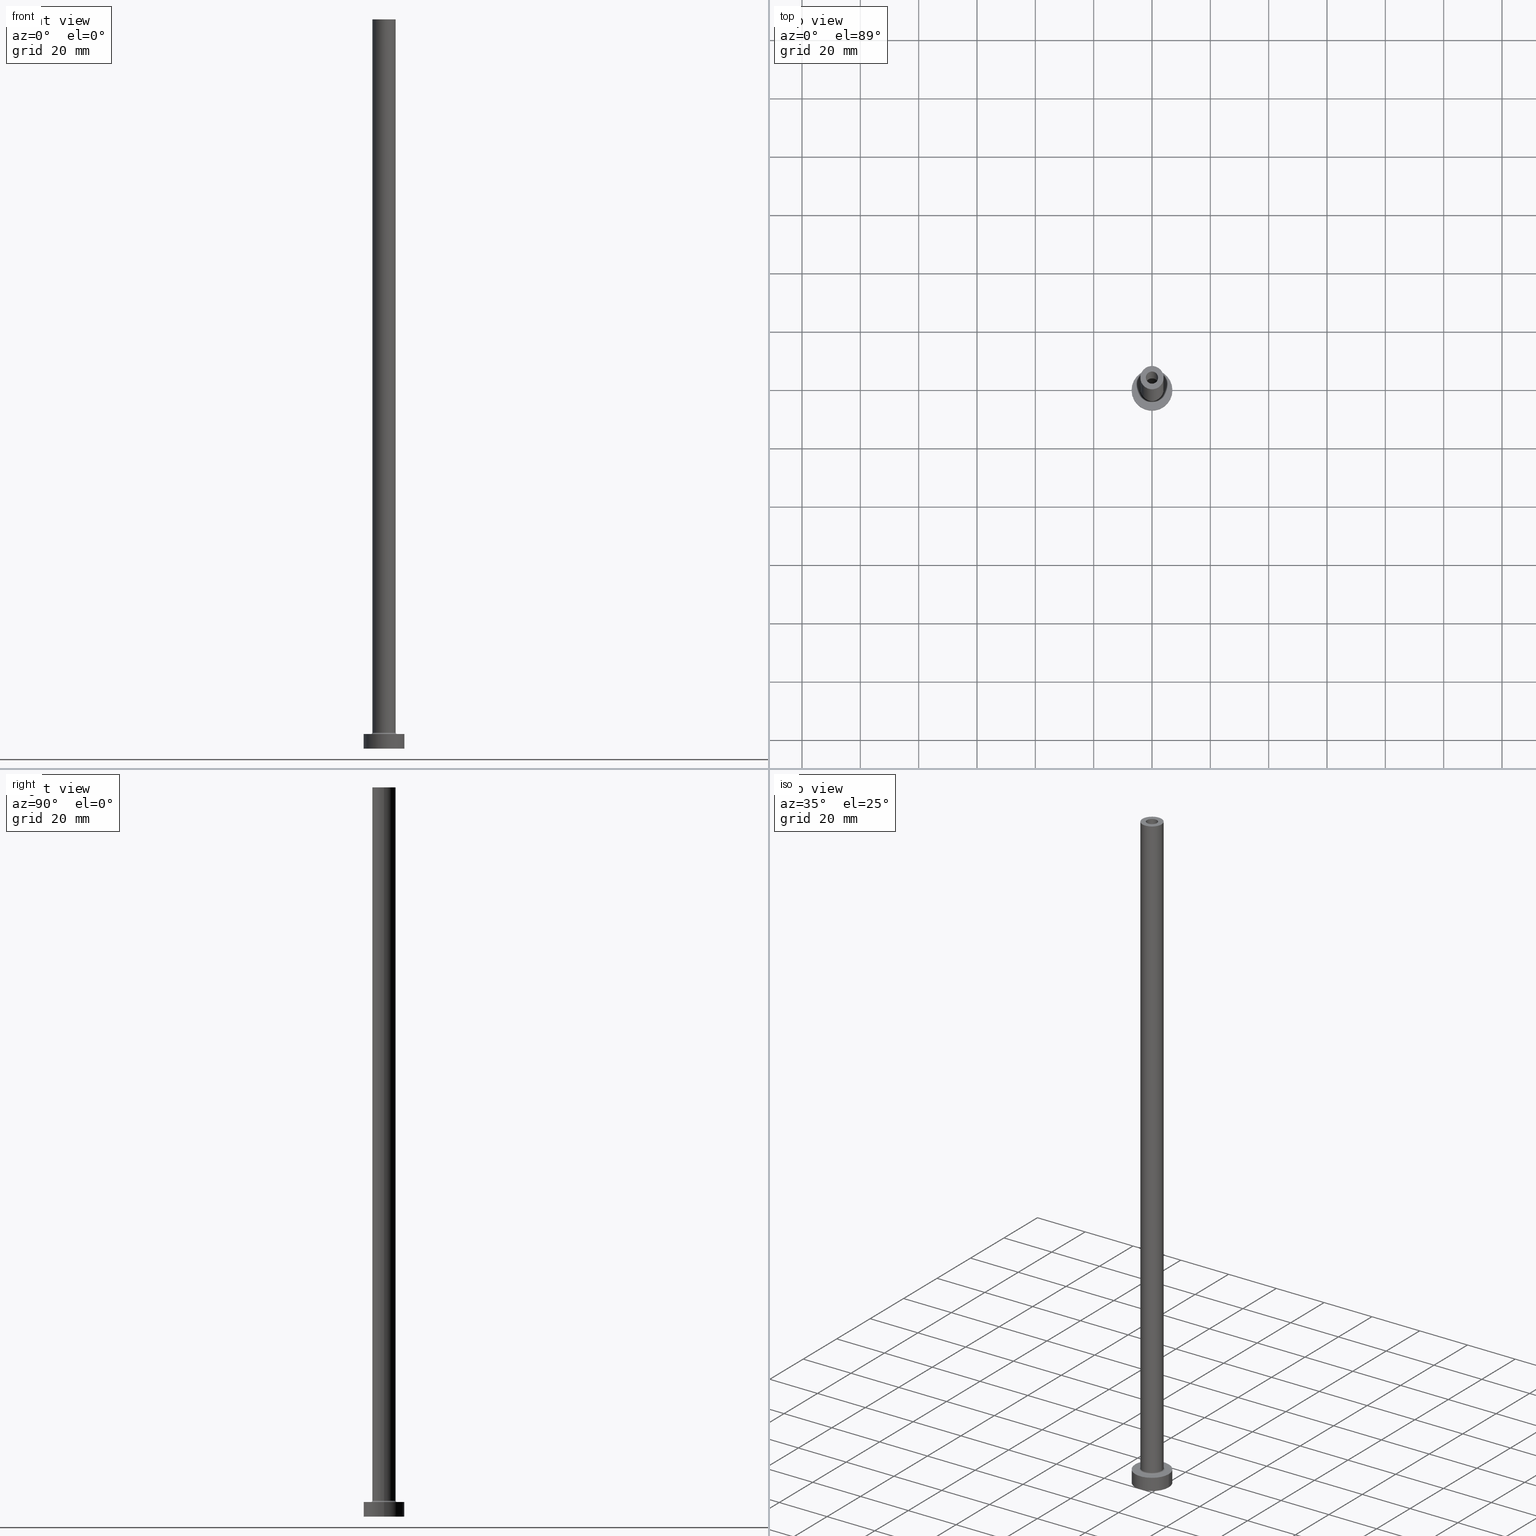
[diagram: canonical four-view strip — front | top / right | iso, engineering-drawing reading convention]
A machine part, canonical four-view strip (front | top / right | iso — engineering-drawing reading convention). The complete STEP part file that produces these views, byte-faithful:
ISO-10303-21;
HEADER;
FILE_DESCRIPTION (( 'STEP AP203' ),
    '1' );
FILE_NAME ('01e0.STEP',
    '2023-02-13T17:32:13',
    ( '' ),
    ( '' ),
    'SwSTEP 2.0',
    'SolidWorks 2019',
    '' );
FILE_SCHEMA (( 'CONFIG_CONTROL_DESIGN' ));
ENDSEC;

DATA;
#1 = FACE_OUTER_BOUND ( 'NONE', #109, .T. ) ;
#2 = ADVANCED_FACE ( 'NONE', ( #353, #72 ), #144, .F. ) ;
#3 = FACE_OUTER_BOUND ( 'NONE', #23, .T. ) ;
#4 = DESIGN_CONTEXT ( 'detailed design', #406, 'design' ) ;
#5 = VECTOR ( 'NONE', #163, 1000.000000000000000 ) ;
#6 = CARTESIAN_POINT ( 'NONE',  ( -4.500000000000000888, 5.510910596163089556E-16, 5.500000000000005329 ) ) ;
#7 = EDGE_LOOP ( 'NONE', ( #444, #385 ) ) ;
#8 = ORIENTED_EDGE ( 'NONE', *, *, #403, .F. ) ;
#9 = ADVANCED_FACE ( 'NONE', ( #282, #425 ), #318, .T. ) ;
#10 = SECURITY_CLASSIFICATION ( '', '', #117 ) ;
#11 = LINE ( 'NONE', #81, #295 ) ;
#12 = CIRCLE ( 'NONE', #436, 4.000000000000000000 ) ;
#13 = DIRECTION ( 'NONE',  ( 0.000000000000000000, 0.000000000000000000, 1.000000000000000000 ) ) ;
#14 = APPROVAL ( #76, 'NEUR�EN�' ) ;
#15 = DIRECTION ( 'NONE',  ( 0.000000000000000000, 0.000000000000000000, -1.000000000000000000 ) ) ;
#16 = EDGE_CURVE ( 'NONE', #417, #141, #400, .T. ) ;
#17 = CARTESIAN_POINT ( 'NONE',  ( 0.000000000000000000, 0.000000000000000000, 250.0000000000000000 ) ) ;
#18 = CIRCLE ( 'NONE', #82, 0.5000000000000004441 ) ;
#19 = DIRECTION ( 'NONE',  ( 1.224646799147353207E-16, 1.000000000000000000, -0.000000000000000000 ) ) ;
#20 = ORIENTED_EDGE ( 'NONE', *, *, #210, .F. ) ;
#21 = CARTESIAN_POINT ( 'NONE',  ( 4.000000000000000000, 4.898587196589412829E-16, 250.0000000000000000 ) ) ;
#22 = FACE_OUTER_BOUND ( 'NONE', #265, .T. ) ;
#23 = EDGE_LOOP ( 'NONE', ( #275, #292, #178, #129 ) ) ;
#24 = DATE_AND_TIME ( #332, #361 ) ;
#25 = CARTESIAN_POINT ( 'NONE',  ( 2.100000000000000089, 2.571758278209441464E-16, 205.0000000000000284 ) ) ;
#26 = AXIS2_PLACEMENT_3D ( 'NONE', #274, #63, #201 ) ;
#27 = ORIENTED_EDGE ( 'NONE', *, *, #221, .F. ) ;
#28 = AXIS2_PLACEMENT_3D ( 'NONE', #139, #254, #69 ) ;
#29 = DIRECTION ( 'NONE',  ( -0.000000000000000000, -0.000000000000000000, -1.000000000000000000 ) ) ;
#30 = ORIENTED_EDGE ( 'NONE', *, *, #88, .T. ) ;
#31 = CC_DESIGN_DATE_AND_TIME_ASSIGNMENT ( #234, #236, ( #10 ) ) ;
#32 = CARTESIAN_POINT ( 'NONE',  ( 0.000000000000000000, 0.000000000000000000, 205.0000000000000284 ) ) ;
#33 = MECHANICAL_CONTEXT ( 'NONE', #386, 'mechanical' ) ;
#34 = APPLICATION_PROTOCOL_DEFINITION ( 'international standard', 'config_control_design', 1994, #406 ) ;
#35 = AXIS2_PLACEMENT_3D ( 'NONE', #326, #68, #459 ) ;
#36 = ADVANCED_FACE ( 'NONE', ( #134, #394 ), #285, .F. ) ;
#37 = VERTEX_POINT ( 'NONE', #365 ) ;
#38 = ORIENTED_EDGE ( 'NONE', *, *, #261, .F. ) ;
#39 = CARTESIAN_POINT ( 'NONE',  ( 0.000000000000000000, 0.000000000000000000, 205.0000000000000284 ) ) ;
#40 = ORIENTED_EDGE ( 'NONE', *, *, #155, .T. ) ;
#41 = ADVANCED_FACE ( 'NONE', ( #209 ), #286, .T. ) ;
#42 = CIRCLE ( 'NONE', #420, 2.250000000000000000 ) ;
#43 = CIRCLE ( 'NONE', #260, 4.000000000000000000 ) ;
#44 = ADVANCED_FACE ( 'NONE', ( #3 ), #179, .F. ) ;
#45 = TOROIDAL_SURFACE ( 'NONE', #430, 4.500000000000000888, 0.5000000000000000000 ) ;
#46 = ADVANCED_FACE ( 'NONE', ( #1 ), #137, .F. ) ;
#47 = AXIS2_PLACEMENT_3D ( 'NONE', #158, #86, #52 ) ;
#48 = DIRECTION ( 'NONE',  ( -1.000000000000000000, 0.000000000000000000, 0.000000000000000000 ) ) ;
#49 = DIRECTION ( 'NONE',  ( -0.000000000000000000, -0.000000000000000000, -1.000000000000000000 ) ) ;
#50 = EDGE_CURVE ( 'NONE', #321, #90, #42, .T. ) ;
#51 = ORIENTED_EDGE ( 'NONE', *, *, #456, .T. ) ;
#52 = DIRECTION ( 'NONE',  ( -1.000000000000000000, 0.000000000000000000, 0.000000000000000000 ) ) ;
#53 = PLANE ( 'NONE',  #360 ) ;
#54 = CYLINDRICAL_SURFACE ( 'NONE', #47, 2.100000000000000089 ) ;
#55 = ORIENTED_EDGE ( 'NONE', *, *, #351, .F. ) ;
#56 = DIRECTION ( 'NONE',  ( 1.000000000000000000, 0.000000000000000000, -0.000000000000000000 ) ) ;
#57 = CIRCLE ( 'NONE', #118, 2.100000000000000089 ) ;
#58 = VERTEX_POINT ( 'NONE', #227 ) ;
#59 = CALENDAR_DATE ( 2023, 13, 2 ) ;
#60 = FACE_OUTER_BOUND ( 'NONE', #61, .T. ) ;
#61 = EDGE_LOOP ( 'NONE', ( #185, #364 ) ) ;
#62 = PERSON_AND_ORGANIZATION ( #402, #156 ) ;
#63 = DIRECTION ( 'NONE',  ( -0.000000000000000000, -0.000000000000000000, -1.000000000000000000 ) ) ;
#64 = EDGE_LOOP ( 'NONE', ( #327, #382, #40, #232 ) ) ;
#65 = LINE ( 'NONE', #391, #243 ) ;
#66 = APPROVAL_DATE_TIME ( #218, #14 ) ;
#67 = ORIENTED_EDGE ( 'NONE', *, *, #239, .F. ) ;
#68 = DIRECTION ( 'NONE',  ( 0.000000000000000000, 0.000000000000000000, 1.000000000000000000 ) ) ;
#69 = DIRECTION ( 'NONE',  ( 1.000000000000000000, 0.000000000000000000, 0.000000000000000000 ) ) ;
#70 = ORIENTED_EDGE ( 'NONE', *, *, #221, .T. ) ;
#71 = CARTESIAN_POINT ( 'NONE',  ( 0.000000000000000000, 0.000000000000000000, 205.0000000000000284 ) ) ;
#72 = FACE_OUTER_BOUND ( 'NONE', #213, .T. ) ;
#73 = VERTEX_POINT ( 'NONE', #369 ) ;
#74 = APPROVAL_PERSON_ORGANIZATION ( #378, #83, #411 ) ;
#75 = ORIENTED_EDGE ( 'NONE', *, *, #106, .T. ) ;
#76 = APPROVAL_STATUS ( 'not_yet_approved' ) ;
#77 = DIRECTION ( 'NONE',  ( 0.000000000000000000, 0.000000000000000000, -1.000000000000000000 ) ) ;
#78 = PRODUCT_DEFINITION ( 'NEZN�M�', '', #268, #4 ) ;
#79 = CIRCLE ( 'NONE', #28, 2.100000000000000089 ) ;
#80 = PRODUCT_DEFINITION_SHAPE ( 'NONE', 'NONE',  #78 ) ;
#81 = CARTESIAN_POINT ( 'NONE',  ( 2.100000000000000089, 2.571758278209441464E-16, 250.0000000000000000 ) ) ;
#82 = AXIS2_PLACEMENT_3D ( 'NONE', #6, #19, #271 ) ;
#83 = APPROVAL ( #161, 'NEUR�EN�' ) ;
#84 = DIRECTION ( 'NONE',  ( 0.000000000000000000, 0.000000000000000000, -1.000000000000000000 ) ) ;
#85 = AXIS2_PLACEMENT_3D ( 'NONE', #330, #49, #48 ) ;
#86 = DIRECTION ( 'NONE',  ( 0.000000000000000000, 0.000000000000000000, -1.000000000000000000 ) ) ;
#87 = CARTESIAN_POINT ( 'NONE',  ( 0.000000000000000000, 0.000000000000000000, 250.0000000000000000 ) ) ;
#88 = EDGE_CURVE ( 'NONE', #435, #195, #11, .T. ) ;
#89 = LINE ( 'NONE', #379, #371 ) ;
#90 = VERTEX_POINT ( 'NONE', #147 ) ;
#91 = FACE_OUTER_BOUND ( 'NONE', #352, .T. ) ;
#92 = AXIS2_PLACEMENT_3D ( 'NONE', #32, #454, #98 ) ;
#93 = ADVANCED_FACE ( 'NONE', ( #259 ), #341, .F. ) ;
#94 = CARTESIAN_POINT ( 'NONE',  ( 0.000000000000000000, 0.000000000000000000, 205.0000000000000284 ) ) ;
#95 = ADVANCED_FACE ( 'NONE', ( #146 ), #266, .T. ) ;
#96 = FACE_BOUND ( 'NONE', #280, .T. ) ;
#97 = VERTEX_POINT ( 'NONE', #404 ) ;
#98 = DIRECTION ( 'NONE',  ( 1.000000000000000000, 0.000000000000000000, 0.000000000000000000 ) ) ;
#99 = CIRCLE ( 'NONE', #222, 2.100000000000000089 ) ;
#100 = DIRECTION ( 'NONE',  ( 1.000000000000000000, 0.000000000000000000, 0.000000000000000000 ) ) ;
#101 = AXIS2_PLACEMENT_3D ( 'NONE', #175, #143, #355 ) ;
#102 = PRODUCT_RELATED_PRODUCT_CATEGORY ( 'detail', '', ( #291 ) ) ;
#103 = DIRECTION ( 'NONE',  ( 0.000000000000000000, 0.000000000000000000, 1.000000000000000000 ) ) ;
#104 =( NAMED_UNIT ( * ) SI_UNIT ( $, .STERADIAN. ) SOLID_ANGLE_UNIT ( ) );
#105 = APPROVAL_ROLE ( '' ) ;
#106 = EDGE_CURVE ( 'NONE', #141, #37, #18, .T. ) ;
#107 = CARTESIAN_POINT ( 'NONE',  ( 0.000000000000000000, 0.000000000000000000, 250.0000000000000000 ) ) ;
#108 = CARTESIAN_POINT ( 'NONE',  ( 0.000000000000000000, 0.000000000000000000, 0.000000000000000000 ) ) ;
#109 = EDGE_LOOP ( 'NONE', ( #70, #363, #112, #453 ) ) ;
#110 = CIRCLE ( 'NONE', #180, 4.500000000000000888 ) ;
#111 = DIRECTION ( 'NONE',  ( -1.000000000000000000, 0.000000000000000000, 0.000000000000000000 ) ) ;
#112 = ORIENTED_EDGE ( 'NONE', *, *, #452, .T. ) ;
#113 = DIRECTION ( 'NONE',  ( 0.000000000000000000, 0.000000000000000000, -1.000000000000000000 ) ) ;
#114 = CIRCLE ( 'NONE', #399, 4.500000000000000888 ) ;
#115 = DIRECTION ( 'NONE',  ( 0.000000000000000000, 0.000000000000000000, -1.000000000000000000 ) ) ;
#116 = ORIENTED_EDGE ( 'NONE', *, *, #370, .F. ) ;
#117 = SECURITY_CLASSIFICATION_LEVEL ( 'unclassified' ) ;
#118 = AXIS2_PLACEMENT_3D ( 'NONE', #39, #357, #322 ) ;
#119 = PERSON_AND_ORGANIZATION_ROLE ( 'creator' ) ;
#120 = ORIENTED_EDGE ( 'NONE', *, *, #132, .F. ) ;
#121 = PERSON_AND_ORGANIZATION_ROLE ( 'classification_officer' ) ;
#122 = DIRECTION ( 'NONE',  ( 0.000000000000000000, -1.000000000000000000, 0.000000000000000000 ) ) ;
#123 = VERTEX_POINT ( 'NONE', #409 ) ;
#124 = CC_DESIGN_SECURITY_CLASSIFICATION ( #10, ( #268 ) ) ;
#125 = ORIENTED_EDGE ( 'NONE', *, *, #376, .F. ) ;
#126 = DIRECTION ( 'NONE',  ( -1.000000000000000000, 0.000000000000000000, 0.000000000000000000 ) ) ;
#127 = AXIS2_PLACEMENT_3D ( 'NONE', #206, #367, #133 ) ;
#128 = DIRECTION ( 'NONE',  ( -0.000000000000000000, -0.000000000000000000, -1.000000000000000000 ) ) ;
#129 = ORIENTED_EDGE ( 'NONE', *, *, #263, .F. ) ;
#130 = CARTESIAN_POINT ( 'NONE',  ( -2.100000000000000089, 0.000000000000000000, 205.0000000000000284 ) ) ;
#131 = ORIENTED_EDGE ( 'NONE', *, *, #258, .F. ) ;
#132 = EDGE_CURVE ( 'NONE', #415, #308, #89, .T. ) ;
#133 = DIRECTION ( 'NONE',  ( 1.000000000000000000, 0.000000000000000000, -0.000000000000000000 ) ) ;
#134 = FACE_BOUND ( 'NONE', #7, .T. ) ;
#135 = AXIS2_PLACEMENT_3D ( 'NONE', #451, #165, #126 ) ;
#136 = COORDINATED_UNIVERSAL_TIME_OFFSET ( 1, 0, .AHEAD. ) ;
#137 = CYLINDRICAL_SURFACE ( 'NONE', #168, 2.250000000000000000 ) ;
#138 = AXIS2_PLACEMENT_3D ( 'NONE', #235, #122, #15 ) ;
#139 = CARTESIAN_POINT ( 'NONE',  ( 0.000000000000000000, 0.000000000000000000, 250.0000000000000000 ) ) ;
#140 = DIRECTION ( 'NONE',  ( -1.000000000000000000, 0.000000000000000000, 0.000000000000000000 ) ) ;
#141 = VERTEX_POINT ( 'NONE', #276 ) ;
#142 = CARTESIAN_POINT ( 'NONE',  ( 0.000000000000000000, 0.000000000000000000, 0.000000000000000000 ) ) ;
#143 = DIRECTION ( 'NONE',  ( 0.000000000000000000, 0.000000000000000000, 1.000000000000000000 ) ) ;
#144 = PLANE ( 'NONE',  #336 ) ;
#145 = LOCAL_TIME ( 18, 32, 13.00000000000000000, #192 ) ;
#146 = FACE_OUTER_BOUND ( 'NONE', #248, .T. ) ;
#147 = CARTESIAN_POINT ( 'NONE',  ( 2.250000000000000000, 2.755455298081543792E-16, 0.000000000000000000 ) ) ;
#148 = CARTESIAN_POINT ( 'NONE',  ( 2.250000000000000000, 2.755455298081543792E-16, 211.3639610306789507 ) ) ;
#149 = AXIS2_PLACEMENT_3D ( 'NONE', #17, #304, #440 ) ;
#150 = LOCAL_TIME ( 18, 32, 13.00000000000000000, #309 ) ;
#151 = CIRCLE ( 'NONE', #389, 7.000000000000000000 ) ;
#152 = ADVANCED_FACE ( 'NONE', ( #91 ), #191, .F. ) ;
#153 = DIRECTION ( 'NONE',  ( 1.000000000000000000, 0.000000000000000000, 0.000000000000000000 ) ) ;
#154 = CC_DESIGN_DATE_AND_TIME_ASSIGNMENT ( #24, #301, ( #78 ) ) ;
#155 = EDGE_CURVE ( 'NONE', #417, #97, #182, .T. ) ;
#156 = ORGANIZATION ( 'NEUR�EN�', 'NEUR�EN�', '' ) ;
#157 = APPROVAL_ROLE ( '' ) ;
#158 = CARTESIAN_POINT ( 'NONE',  ( 0.000000000000000000, 0.000000000000000000, 250.0000000000000000 ) ) ;
#159 = CARTESIAN_POINT ( 'NONE',  ( 0.000000000000000000, 0.000000000000000000, 211.3639610306789507 ) ) ;
#160 = ORIENTED_EDGE ( 'NONE', *, *, #387, .F. ) ;
#161 = APPROVAL_STATUS ( 'not_yet_approved' ) ;
#162 = CC_DESIGN_PERSON_AND_ORGANIZATION_ASSIGNMENT ( #229, #121, ( #10 ) ) ;
#163 = DIRECTION ( 'NONE',  ( -0.000000000000000000, -0.000000000000000000, -1.000000000000000000 ) ) ;
#164 = EDGE_LOOP ( 'NONE', ( #125, #342, #256, #120 ) ) ;
#165 = DIRECTION ( 'NONE',  ( -0.000000000000000000, -0.000000000000000000, -1.000000000000000000 ) ) ;
#166 = ORIENTED_EDGE ( 'NONE', *, *, #294, .F. ) ;
#167 = DIRECTION ( 'NONE',  ( 1.000000000000000000, 0.000000000000000000, 0.000000000000000000 ) ) ;
#168 = AXIS2_PLACEMENT_3D ( 'NONE', #251, #77, #219 ) ;
#169 = AXIS2_PLACEMENT_3D ( 'NONE', #439, #388, #288 ) ;
#170 = DIRECTION ( 'NONE',  ( -0.000000000000000000, -0.000000000000000000, -1.000000000000000000 ) ) ;
#171 = ORIENTED_EDGE ( 'NONE', *, *, #269, .F. ) ;
#172 = DIRECTION ( 'NONE',  ( 1.000000000000000000, 0.000000000000000000, 0.000000000000000000 ) ) ;
#173 = EDGE_LOOP ( 'NONE', ( #116, #160 ) ) ;
#174 = EDGE_CURVE ( 'NONE', #415, #395, #151, .T. ) ;
#175 = CARTESIAN_POINT ( 'NONE',  ( 0.000000000000000000, 0.000000000000000000, 0.000000000000000000 ) ) ;
#176 = DIRECTION ( 'NONE',  ( 0.000000000000000000, 0.000000000000000000, 1.000000000000000000 ) ) ;
#177 = DIRECTION ( 'NONE',  ( -0.000000000000000000, -0.000000000000000000, -1.000000000000000000 ) ) ;
#178 = ORIENTED_EDGE ( 'NONE', *, *, #294, .T. ) ;
#179 = CYLINDRICAL_SURFACE ( 'NONE', #223, 2.100000000000000089 ) ;
#180 = AXIS2_PLACEMENT_3D ( 'NONE', #316, #245, #380 ) ;
#181 = DIRECTION ( 'NONE',  ( 0.000000000000000000, 0.000000000000000000, 1.000000000000000000 ) ) ;
#182 = CIRCLE ( 'NONE', #138, 0.5000000000000004441 ) ;
#183 = EDGE_CURVE ( 'NONE', #447, #284, #12, .T. ) ;
#184 = ORIENTED_EDGE ( 'NONE', *, *, #396, .T. ) ;
#185 = ORIENTED_EDGE ( 'NONE', *, *, #183, .T. ) ;
#186 = ADVANCED_FACE ( 'NONE', ( #230 ), #237, .T. ) ;
#187 = APPROVAL_PERSON_ORGANIZATION ( #62, #226, #157 ) ;
#188 = VECTOR ( 'NONE', #246, 1000.000000000000000 ) ;
#189 = AXIS2_PLACEMENT_3D ( 'NONE', #159, #338, #407 ) ;
#190 = AXIS2_PLACEMENT_3D ( 'NONE', #418, #458, #100 ) ;
#191 = CYLINDRICAL_SURFACE ( 'NONE', #189, 2.250000000000000000 ) ;
#192 = COORDINATED_UNIVERSAL_TIME_OFFSET ( 1, 0, .AHEAD. ) ;
#193 = DIRECTION ( 'NONE',  ( 0.000000000000000000, 0.000000000000000000, 1.000000000000000000 ) ) ;
#194 = ADVANCED_FACE ( 'NONE', ( #446 ), #45, .F. ) ;
#195 = VERTEX_POINT ( 'NONE', #25 ) ;
#196 = LINE ( 'NONE', #21, #5 ) ;
#197 = COORDINATED_UNIVERSAL_TIME_OFFSET ( 1, 0, .AHEAD. ) ;
#198 = ORIENTED_EDGE ( 'NONE', *, *, #396, .F. ) ;
#199 = EDGE_LOOP ( 'NONE', ( #38, #75, #55, #422 ) ) ;
#200 = PERSON_AND_ORGANIZATION ( #402, #156 ) ;
#201 = DIRECTION ( 'NONE',  ( -1.000000000000000000, 0.000000000000000000, 0.000000000000000000 ) ) ;
#202 = ORIENTED_EDGE ( 'NONE', *, *, #401, .F. ) ;
#203 = DATE_AND_TIME ( #59, #150 ) ;
#204 = ADVANCED_FACE ( 'NONE', ( #96, #60 ), #53, .T. ) ;
#205 = CARTESIAN_POINT ( 'NONE',  ( 4.000000000000000000, 4.898587196589412829E-16, 250.0000000000000000 ) ) ;
#206 = CARTESIAN_POINT ( 'NONE',  ( 0.000000000000000000, 0.000000000000000000, 5.000000000000000000 ) ) ;
#207 = DIRECTION ( 'NONE',  ( 1.000000000000000000, 0.000000000000000000, 0.000000000000000000 ) ) ;
#208 = ORIENTED_EDGE ( 'NONE', *, *, #370, .T. ) ;
#209 = FACE_OUTER_BOUND ( 'NONE', #164, .T. ) ;
#210 = EDGE_CURVE ( 'NONE', #346, #435, #289, .T. ) ;
#211 = CARTESIAN_POINT ( 'NONE',  ( 0.000000000000000000, 0.000000000000000000, 0.000000000000000000 ) ) ;
#212 = CC_DESIGN_APPROVAL ( #226, ( #268 ) ) ;
#213 = EDGE_LOOP ( 'NONE', ( #27, #277 ) ) ;
#214 = CLOSED_SHELL ( 'NONE', ( #358, #46, #93, #186, #41, #95, #9, #36, #340, #204, #194, #152, #2, #44 ) ) ;
#215 = CC_DESIGN_PERSON_AND_ORGANIZATION_ASSIGNMENT ( #366, #247, ( #78 ) ) ;
#216 = DIRECTION ( 'NONE',  ( 1.000000000000000000, 0.000000000000000000, -0.000000000000000000 ) ) ;
#217 = CARTESIAN_POINT ( 'NONE',  ( 7.000000000000000000, 8.572527594031473190E-16, 5.000000000000000000 ) ) ;
#218 = DATE_AND_TIME ( #250, #233 ) ;
#219 = DIRECTION ( 'NONE',  ( -1.000000000000000000, 0.000000000000000000, 0.000000000000000000 ) ) ;
#220 = ADVANCED_BREP_SHAPE_REPRESENTATION ( '01e0', ( #299, #101 ), #433 ) ;
#221 = EDGE_CURVE ( 'NONE', #73, #123, #334, .T. ) ;
#222 = AXIS2_PLACEMENT_3D ( 'NONE', #302, #437, #324 ) ;
#223 = AXIS2_PLACEMENT_3D ( 'NONE', #107, #290, #111 ) ;
#224 = AXIS2_PLACEMENT_3D ( 'NONE', #337, #13, #300 ) ;
#225 = CIRCLE ( 'NONE', #92, 2.250000000000000000 ) ;
#226 = APPROVAL ( #273, 'NEUR�EN�' ) ;
#227 = CARTESIAN_POINT ( 'NONE',  ( 7.000000000000000000, 8.572527594031473190E-16, 0.000000000000000000 ) ) ;
#228 = DIRECTION ( 'NONE',  ( -0.000000000000000000, -0.000000000000000000, -1.000000000000000000 ) ) ;
#229 = PERSON_AND_ORGANIZATION ( #402, #156 ) ;
#230 = FACE_OUTER_BOUND ( 'NONE', #412, .T. ) ;
#231 = CARTESIAN_POINT ( 'NONE',  ( -2.100000000000000089, 0.000000000000000000, 250.0000000000000000 ) ) ;
#232 = ORIENTED_EDGE ( 'NONE', *, *, #428, .F. ) ;
#233 = LOCAL_TIME ( 18, 32, 13.00000000000000000, #421 ) ;
#234 = DATE_AND_TIME ( #347, #145 ) ;
#235 = CARTESIAN_POINT ( 'NONE',  ( 4.500000000000000888, 0.000000000000000000, 5.500000000000005329 ) ) ;
#236 = DATE_TIME_ROLE ( 'classification_date' ) ;
#237 = CYLINDRICAL_SURFACE ( 'NONE', #26, 4.000000000000000000 ) ;
#238 = ORIENTED_EDGE ( 'NONE', *, *, #263, .T. ) ;
#239 = EDGE_CURVE ( 'NONE', #284, #417, #196, .T. ) ;
#240 = LINE ( 'NONE', #344, #329 ) ;
#241 = EDGE_LOOP ( 'NONE', ( #390, #30, #8, #166 ) ) ;
#242 = CIRCLE ( 'NONE', #303, 4.000000000000000000 ) ;
#243 = VECTOR ( 'NONE', #177, 1000.000000000000000 ) ;
#244 = ORIENTED_EDGE ( 'NONE', *, *, #403, .T. ) ;
#245 = DIRECTION ( 'NONE',  ( -0.000000000000000000, -0.000000000000000000, -1.000000000000000000 ) ) ;
#246 = DIRECTION ( 'NONE',  ( 0.000000000000000000, 0.000000000000000000, -1.000000000000000000 ) ) ;
#247 = PERSON_AND_ORGANIZATION_ROLE ( 'creator' ) ;
#248 = EDGE_LOOP ( 'NONE', ( #131, #383, #392, #208 ) ) ;
#249 = ORIENTED_EDGE ( 'NONE', *, *, #351, .T. ) ;
#250 = CALENDAR_DATE ( 2023, 13, 2 ) ;
#251 = CARTESIAN_POINT ( 'NONE',  ( 0.000000000000000000, 0.000000000000000000, 211.3639610306789507 ) ) ;
#252 = CC_DESIGN_PERSON_AND_ORGANIZATION_ASSIGNMENT ( #362, #424, ( #291 ) ) ;
#253 = CARTESIAN_POINT ( 'NONE',  ( 2.100000000000000089, 2.571758278209441464E-16, 250.0000000000000000 ) ) ;
#254 = DIRECTION ( 'NONE',  ( 0.000000000000000000, 0.000000000000000000, 1.000000000000000000 ) ) ;
#255 = DIRECTION ( 'NONE',  ( 1.000000000000000000, 0.000000000000000000, 0.000000000000000000 ) ) ;
#256 = ORIENTED_EDGE ( 'NONE', *, *, #387, .T. ) ;
#257 = DIRECTION ( 'NONE',  ( -0.000000000000000000, -0.000000000000000000, -1.000000000000000000 ) ) ;
#258 = EDGE_CURVE ( 'NONE', #395, #58, #240, .T. ) ;
#259 = FACE_OUTER_BOUND ( 'NONE', #199, .T. ) ;
#260 = AXIS2_PLACEMENT_3D ( 'NONE', #423, #103, #255 ) ;
#261 = EDGE_CURVE ( 'NONE', #141, #417, #242, .T. ) ;
#262 = CARTESIAN_POINT ( 'NONE',  ( -2.250000000000000000, 0.000000000000000000, 0.000000000000000000 ) ) ;
#263 = EDGE_CURVE ( 'NONE', #195, #349, #99, .T. ) ;
#264 = CC_DESIGN_PERSON_AND_ORGANIZATION_ASSIGNMENT ( #306, #442, ( #268 ) ) ;
#265 = EDGE_LOOP ( 'NONE', ( #67, #305, #184, #298 ) ) ;
#266 = CYLINDRICAL_SURFACE ( 'NONE', #85, 7.000000000000000000 ) ;
#267 = AXIS2_PLACEMENT_3D ( 'NONE', #356, #325, #140 ) ;
#268 = PRODUCT_DEFINITION_FORMATION_WITH_SPECIFIED_SOURCE ( 'LIBOVOLN�', '', #291, .NOT_KNOWN. ) ;
#269 = EDGE_CURVE ( 'NONE', #435, #346, #79, .T. ) ;
#270 = CALENDAR_DATE ( 2023, 13, 2 ) ;
#271 = DIRECTION ( 'NONE',  ( -1.000000000000000000, 1.224646799147351482E-16, 0.000000000000000000 ) ) ;
#272 = ORIENTED_EDGE ( 'NONE', *, *, #50, .T. ) ;
#273 = APPROVAL_STATUS ( 'not_yet_approved' ) ;
#274 = CARTESIAN_POINT ( 'NONE',  ( 0.000000000000000000, 0.000000000000000000, 250.0000000000000000 ) ) ;
#275 = ORIENTED_EDGE ( 'NONE', *, *, #88, .F. ) ;
#276 = CARTESIAN_POINT ( 'NONE',  ( -4.000000000000000000, 0.000000000000000000, 5.500000000000005329 ) ) ;
#277 = ORIENTED_EDGE ( 'NONE', *, *, #456, .F. ) ;
#278 = DIRECTION ( 'NONE',  ( 1.000000000000000000, 0.000000000000000000, 0.000000000000000000 ) ) ;
#279 = FACE_OUTER_BOUND ( 'NONE', #241, .T. ) ;
#280 = EDGE_LOOP ( 'NONE', ( #20, #171 ) ) ;
#281 = CARTESIAN_POINT ( 'NONE',  ( -4.000000000000000000, 0.000000000000000000, 250.0000000000000000 ) ) ;
#282 = FACE_BOUND ( 'NONE', #319, .T. ) ;
#283 = PERSON_AND_ORGANIZATION ( #402, #156 ) ;
#284 = VERTEX_POINT ( 'NONE', #205 ) ;
#285 = PLANE ( 'NONE',  #448 ) ;
#286 = CYLINDRICAL_SURFACE ( 'NONE', #267, 7.000000000000000000 ) ;
#287 =( NAMED_UNIT ( * ) PLANE_ANGLE_UNIT ( ) SI_UNIT ( $, .RADIAN. ) );
#288 = DIRECTION ( 'NONE',  ( 1.000000000000000000, 0.000000000000000000, 0.000000000000000000 ) ) ;
#289 = CIRCLE ( 'NONE', #149, 2.100000000000000089 ) ;
#290 = DIRECTION ( 'NONE',  ( 0.000000000000000000, 0.000000000000000000, -1.000000000000000000 ) ) ;
#291 = PRODUCT ( '01e0', '01e0', '', ( #33 ) ) ;
#292 = ORIENTED_EDGE ( 'NONE', *, *, #269, .T. ) ;
#293 = CC_DESIGN_PERSON_AND_ORGANIZATION_ASSIGNMENT ( #200, #119, ( #268 ) ) ;
#294 = EDGE_CURVE ( 'NONE', #346, #349, #314, .T. ) ;
#295 = VECTOR ( 'NONE', #84, 1000.000000000000000 ) ;
#296 = CC_DESIGN_APPROVAL ( #14, ( #78 ) ) ;
#297 = LINE ( 'NONE', #434, #343 ) ;
#298 = ORIENTED_EDGE ( 'NONE', *, *, #261, .T. ) ;
#299 = MANIFOLD_SOLID_BREP ( 'Odebrat vysunut�m4', #214 ) ;
#300 = DIRECTION ( 'NONE',  ( 1.000000000000000000, 0.000000000000000000, 0.000000000000000000 ) ) ;
#301 = DATE_TIME_ROLE ( 'creation_date' ) ;
#302 = CARTESIAN_POINT ( 'NONE',  ( 0.000000000000000000, 0.000000000000000000, 205.0000000000000284 ) ) ;
#303 = AXIS2_PLACEMENT_3D ( 'NONE', #443, #416, #381 ) ;
#304 = DIRECTION ( 'NONE',  ( 0.000000000000000000, 0.000000000000000000, 1.000000000000000000 ) ) ;
#305 = ORIENTED_EDGE ( 'NONE', *, *, #183, .F. ) ;
#306 = PERSON_AND_ORGANIZATION ( #402, #156 ) ;
#307 = CARTESIAN_POINT ( 'NONE',  ( 0.000000000000000000, 0.000000000000000000, 5.500000000000005329 ) ) ;
#308 = VERTEX_POINT ( 'NONE', #393 ) ;
#309 = COORDINATED_UNIVERSAL_TIME_OFFSET ( 1, 0, .AHEAD. ) ;
#310 = DIRECTION ( 'NONE',  ( 1.000000000000000000, 0.000000000000000000, 0.000000000000000000 ) ) ;
#311 = SHAPE_DEFINITION_REPRESENTATION ( #80, #220 ) ;
#312 = CARTESIAN_POINT ( 'NONE',  ( 0.000000000000000000, 0.000000000000000000, 250.0000000000000000 ) ) ;
#313 = DIRECTION ( 'NONE',  ( 1.000000000000000000, 0.000000000000000000, 0.000000000000000000 ) ) ;
#314 = LINE ( 'NONE', #457, #188 ) ;
#315 = ORIENTED_EDGE ( 'NONE', *, *, #317, .F. ) ;
#316 = CARTESIAN_POINT ( 'NONE',  ( 0.000000000000000000, 0.000000000000000000, 5.000000000000000000 ) ) ;
#317 = EDGE_CURVE ( 'NONE', #123, #90, #432, .T. ) ;
#318 = PLANE ( 'NONE',  #127 ) ;
#319 = EDGE_LOOP ( 'NONE', ( #249, #455 ) ) ;
#320 = CIRCLE ( 'NONE', #431, 2.250000000000000000 ) ;
#321 = VERTEX_POINT ( 'NONE', #262 ) ;
#322 = DIRECTION ( 'NONE',  ( 1.000000000000000000, 0.000000000000000000, 0.000000000000000000 ) ) ;
#323 = APPLICATION_PROTOCOL_DEFINITION ( 'international standard', 'config_control_design', 1994, #386 ) ;
#324 = DIRECTION ( 'NONE',  ( 1.000000000000000000, 0.000000000000000000, 0.000000000000000000 ) ) ;
#325 = DIRECTION ( 'NONE',  ( -0.000000000000000000, -0.000000000000000000, -1.000000000000000000 ) ) ;
#326 = CARTESIAN_POINT ( 'NONE',  ( 0.000000000000000000, 0.000000000000000000, 5.000000000000000000 ) ) ;
#327 = ORIENTED_EDGE ( 'NONE', *, *, #106, .F. ) ;
#328 = EDGE_CURVE ( 'NONE', #73, #321, #297, .T. ) ;
#329 = VECTOR ( 'NONE', #128, 1000.000000000000000 ) ;
#330 = CARTESIAN_POINT ( 'NONE',  ( 0.000000000000000000, 0.000000000000000000, 5.000000000000000000 ) ) ;
#331 = CIRCLE ( 'NONE', #461, 7.000000000000000000 ) ;
#332 = CALENDAR_DATE ( 2023, 13, 2 ) ;
#333 = DIRECTION ( 'NONE',  ( 1.000000000000000000, 0.000000000000000000, 0.000000000000000000 ) ) ;
#334 = CIRCLE ( 'NONE', #398, 2.250000000000000000 ) ;
#335 = LOCAL_TIME ( 18, 32, 13.00000000000000000, #197 ) ;
#336 = AXIS2_PLACEMENT_3D ( 'NONE', #71, #176, #216 ) ;
#337 = CARTESIAN_POINT ( 'NONE',  ( 0.000000000000000000, 0.000000000000000000, 5.500000000000005329 ) ) ;
#338 = DIRECTION ( 'NONE',  ( 0.000000000000000000, 0.000000000000000000, -1.000000000000000000 ) ) ;
#339 = ORIENTED_EDGE ( 'NONE', *, *, #328, .T. ) ;
#340 = ADVANCED_FACE ( 'NONE', ( #22 ), #374, .T. ) ;
#341 = TOROIDAL_SURFACE ( 'NONE', #224, 4.500000000000000888, 0.5000000000000000000 ) ;
#342 = ORIENTED_EDGE ( 'NONE', *, *, #258, .T. ) ;
#343 = VECTOR ( 'NONE', #115, 1000.000000000000000 ) ;
#344 = CARTESIAN_POINT ( 'NONE',  ( 7.000000000000000000, 8.572527594031473190E-16, 5.000000000000000000 ) ) ;
#345 = ORIENTED_EDGE ( 'NONE', *, *, #16, .T. ) ;
#346 = VERTEX_POINT ( 'NONE', #231 ) ;
#347 = CALENDAR_DATE ( 2023, 13, 2 ) ;
#348 = CARTESIAN_POINT ( 'NONE',  ( 0.000000000000000000, 0.000000000000000000, 5.000000000000000000 ) ) ;
#349 = VERTEX_POINT ( 'NONE', #130 ) ;
#350 = APPROVAL_PERSON_ORGANIZATION ( #283, #14, #105 ) ;
#351 = EDGE_CURVE ( 'NONE', #97, #37, #114, .T. ) ;
#352 = EDGE_LOOP ( 'NONE', ( #315, #51, #339, #272 ) ) ;
#353 = FACE_BOUND ( 'NONE', #460, .T. ) ;
#354 = ORIENTED_EDGE ( 'NONE', *, *, #376, .T. ) ;
#355 = DIRECTION ( 'NONE',  ( 1.000000000000000000, 0.000000000000000000, 0.000000000000000000 ) ) ;
#356 = CARTESIAN_POINT ( 'NONE',  ( 0.000000000000000000, 0.000000000000000000, 5.000000000000000000 ) ) ;
#357 = DIRECTION ( 'NONE',  ( 0.000000000000000000, 0.000000000000000000, 1.000000000000000000 ) ) ;
#358 = ADVANCED_FACE ( 'NONE', ( #279 ), #54, .F. ) ;
#359 = UNCERTAINTY_MEASURE_WITH_UNIT (LENGTH_MEASURE( 1.000000000000000082E-05 ), #397, 'distance_accuracy_value', 'NONE');
#360 = AXIS2_PLACEMENT_3D ( 'NONE', #312, #414, #56 ) ;
#361 = LOCAL_TIME ( 18, 32, 13.00000000000000000, #136 ) ;
#362 = PERSON_AND_ORGANIZATION ( #402, #156 ) ;
#363 = ORIENTED_EDGE ( 'NONE', *, *, #317, .T. ) ;
#364 = ORIENTED_EDGE ( 'NONE', *, *, #401, .T. ) ;
#365 = CARTESIAN_POINT ( 'NONE',  ( -4.500000000000000888, 5.510910596163088569E-16, 5.000000000000002665 ) ) ;
#366 = PERSON_AND_ORGANIZATION ( #402, #156 ) ;
#367 = DIRECTION ( 'NONE',  ( 0.000000000000000000, 0.000000000000000000, 1.000000000000000000 ) ) ;
#368 = CARTESIAN_POINT ( 'NONE',  ( 4.000000000000000000, 4.898587196589412829E-16, 5.500000000000005329 ) ) ;
#369 = CARTESIAN_POINT ( 'NONE',  ( -2.250000000000000000, 0.000000000000000000, 205.0000000000000284 ) ) ;
#370 = EDGE_CURVE ( 'NONE', #308, #58, #413, .T. ) ;
#371 = VECTOR ( 'NONE', #228, 1000.000000000000000 ) ;
#372 = DATE_AND_TIME ( #270, #335 ) ;
#373 = DIRECTION ( 'NONE',  ( 0.000000000000000000, 0.000000000000000000, 1.000000000000000000 ) ) ;
#374 = CYLINDRICAL_SURFACE ( 'NONE', #135, 4.000000000000000000 ) ;
#375 = DIRECTION ( 'NONE',  ( 0.000000000000000000, 0.000000000000000000, 1.000000000000000000 ) ) ;
#376 = EDGE_CURVE ( 'NONE', #395, #415, #419, .T. ) ;
#377 = CARTESIAN_POINT ( 'NONE',  ( 0.000000000000000000, 0.000000000000000000, 5.000000000000000000 ) ) ;
#378 = PERSON_AND_ORGANIZATION ( #402, #156 ) ;
#379 = CARTESIAN_POINT ( 'NONE',  ( -7.000000000000000000, 0.000000000000000000, 5.000000000000000000 ) ) ;
#380 = DIRECTION ( 'NONE',  ( 1.000000000000000000, 0.000000000000000000, 0.000000000000000000 ) ) ;
#381 = DIRECTION ( 'NONE',  ( 1.000000000000000000, 0.000000000000000000, 0.000000000000000000 ) ) ;
#382 = ORIENTED_EDGE ( 'NONE', *, *, #16, .F. ) ;
#383 = ORIENTED_EDGE ( 'NONE', *, *, #174, .F. ) ;
#384 = CARTESIAN_POINT ( 'NONE',  ( 0.000000000000000000, 0.000000000000000000, 0.000000000000000000 ) ) ;
#385 = ORIENTED_EDGE ( 'NONE', *, *, #452, .F. ) ;
#386 = APPLICATION_CONTEXT ( 'configuration controlled 3d designs of mechanical parts and assemblies' ) ;
#387 = EDGE_CURVE ( 'NONE', #58, #308, #331, .T. ) ;
#388 = DIRECTION ( 'NONE',  ( 0.000000000000000000, 0.000000000000000000, 1.000000000000000000 ) ) ;
#389 = AXIS2_PLACEMENT_3D ( 'NONE', #377, #373, #310 ) ;
#390 = ORIENTED_EDGE ( 'NONE', *, *, #210, .T. ) ;
#391 = CARTESIAN_POINT ( 'NONE',  ( -4.000000000000000000, 0.000000000000000000, 250.0000000000000000 ) ) ;
#392 = ORIENTED_EDGE ( 'NONE', *, *, #132, .T. ) ;
#393 = CARTESIAN_POINT ( 'NONE',  ( -7.000000000000000000, 0.000000000000000000, 0.000000000000000000 ) ) ;
#394 = FACE_OUTER_BOUND ( 'NONE', #173, .T. ) ;
#395 = VERTEX_POINT ( 'NONE', #217 ) ;
#396 = EDGE_CURVE ( 'NONE', #447, #141, #65, .T. ) ;
#397 =( LENGTH_UNIT ( ) NAMED_UNIT ( * ) SI_UNIT ( .MILLI., .METRE. ) );
#398 = AXIS2_PLACEMENT_3D ( 'NONE', #94, #450, #153 ) ;
#399 = AXIS2_PLACEMENT_3D ( 'NONE', #348, #170, #313 ) ;
#400 = CIRCLE ( 'NONE', #190, 4.000000000000000000 ) ;
#401 = EDGE_CURVE ( 'NONE', #284, #447, #43, .T. ) ;
#402 = PERSON ( 'NEUR�EN�', 'NEUR�EN�', 'NEUR�EN�', ('NEUR�EN�'), ('NEUR�EN�'), ('NEUR�EN�') ) ;
#403 = EDGE_CURVE ( 'NONE', #349, #195, #57, .T. ) ;
#404 = CARTESIAN_POINT ( 'NONE',  ( 4.500000000000000888, 0.000000000000000000, 5.000000000000002665 ) ) ;
#405 = CC_DESIGN_APPROVAL ( #83, ( #10 ) ) ;
#406 = APPLICATION_CONTEXT ( 'configuration controlled 3d designs of mechanical parts and assemblies' ) ;
#407 = DIRECTION ( 'NONE',  ( -1.000000000000000000, 0.000000000000000000, 0.000000000000000000 ) ) ;
#408 = ORIENTED_EDGE ( 'NONE', *, *, #174, .T. ) ;
#409 = CARTESIAN_POINT ( 'NONE',  ( 2.250000000000000000, 2.755455298081543792E-16, 205.0000000000000284 ) ) ;
#410 = EDGE_LOOP ( 'NONE', ( #408, #354 ) ) ;
#411 = APPROVAL_ROLE ( '' ) ;
#412 = EDGE_LOOP ( 'NONE', ( #202, #441, #345, #198 ) ) ;
#413 = CIRCLE ( 'NONE', #169, 7.000000000000000000 ) ;
#414 = DIRECTION ( 'NONE',  ( 0.000000000000000000, 0.000000000000000000, 1.000000000000000000 ) ) ;
#415 = VERTEX_POINT ( 'NONE', #426 ) ;
#416 = DIRECTION ( 'NONE',  ( 0.000000000000000000, 0.000000000000000000, 1.000000000000000000 ) ) ;
#417 = VERTEX_POINT ( 'NONE', #368 ) ;
#418 = CARTESIAN_POINT ( 'NONE',  ( 0.000000000000000000, 0.000000000000000000, 5.500000000000005329 ) ) ;
#419 = CIRCLE ( 'NONE', #35, 7.000000000000000000 ) ;
#420 = AXIS2_PLACEMENT_3D ( 'NONE', #108, #257, #333 ) ;
#421 = COORDINATED_UNIVERSAL_TIME_OFFSET ( 1, 0, .AHEAD. ) ;
#422 = ORIENTED_EDGE ( 'NONE', *, *, #155, .F. ) ;
#423 = CARTESIAN_POINT ( 'NONE',  ( 0.000000000000000000, 0.000000000000000000, 250.0000000000000000 ) ) ;
#424 = PERSON_AND_ORGANIZATION_ROLE ( 'design_owner' ) ;
#425 = FACE_OUTER_BOUND ( 'NONE', #410, .T. ) ;
#426 = CARTESIAN_POINT ( 'NONE',  ( -7.000000000000000000, 0.000000000000000000, 5.000000000000000000 ) ) ;
#427 = DIRECTION ( 'NONE',  ( 1.000000000000000000, 0.000000000000000000, -0.000000000000000000 ) ) ;
#428 = EDGE_CURVE ( 'NONE', #37, #97, #110, .T. ) ;
#429 = DIRECTION ( 'NONE',  ( 0.000000000000000000, 0.000000000000000000, 1.000000000000000000 ) ) ;
#430 = AXIS2_PLACEMENT_3D ( 'NONE', #307, #375, #167 ) ;
#431 = AXIS2_PLACEMENT_3D ( 'NONE', #142, #29, #172 ) ;
#432 = LINE ( 'NONE', #148, #438 ) ;
#433 =( GEOMETRIC_REPRESENTATION_CONTEXT ( 3 ) GLOBAL_UNCERTAINTY_ASSIGNED_CONTEXT ( ( #359 ) ) GLOBAL_UNIT_ASSIGNED_CONTEXT ( ( #397, #287, #104 ) ) REPRESENTATION_CONTEXT ( 'NONE', 'WORKASPACE' ) );
#434 = CARTESIAN_POINT ( 'NONE',  ( -2.250000000000000000, 0.000000000000000000, 211.3639610306789507 ) ) ;
#435 = VERTEX_POINT ( 'NONE', #253 ) ;
#436 = AXIS2_PLACEMENT_3D ( 'NONE', #87, #193, #278 ) ;
#437 = DIRECTION ( 'NONE',  ( 0.000000000000000000, 0.000000000000000000, 1.000000000000000000 ) ) ;
#438 = VECTOR ( 'NONE', #113, 1000.000000000000000 ) ;
#439 = CARTESIAN_POINT ( 'NONE',  ( 0.000000000000000000, 0.000000000000000000, 0.000000000000000000 ) ) ;
#440 = DIRECTION ( 'NONE',  ( 1.000000000000000000, 0.000000000000000000, 0.000000000000000000 ) ) ;
#441 = ORIENTED_EDGE ( 'NONE', *, *, #239, .T. ) ;
#442 = PERSON_AND_ORGANIZATION_ROLE ( 'design_supplier' ) ;
#443 = CARTESIAN_POINT ( 'NONE',  ( 0.000000000000000000, 0.000000000000000000, 5.500000000000005329 ) ) ;
#444 = ORIENTED_EDGE ( 'NONE', *, *, #50, .F. ) ;
#445 = APPROVAL_DATE_TIME ( #372, #83 ) ;
#446 = FACE_OUTER_BOUND ( 'NONE', #64, .T. ) ;
#447 = VERTEX_POINT ( 'NONE', #281 ) ;
#448 = AXIS2_PLACEMENT_3D ( 'NONE', #211, #181, #427 ) ;
#449 = APPROVAL_DATE_TIME ( #203, #226 ) ;
#450 = DIRECTION ( 'NONE',  ( 0.000000000000000000, 0.000000000000000000, 1.000000000000000000 ) ) ;
#451 = CARTESIAN_POINT ( 'NONE',  ( 0.000000000000000000, 0.000000000000000000, 250.0000000000000000 ) ) ;
#452 = EDGE_CURVE ( 'NONE', #90, #321, #320, .T. ) ;
#453 = ORIENTED_EDGE ( 'NONE', *, *, #328, .F. ) ;
#454 = DIRECTION ( 'NONE',  ( 0.000000000000000000, 0.000000000000000000, 1.000000000000000000 ) ) ;
#455 = ORIENTED_EDGE ( 'NONE', *, *, #428, .T. ) ;
#456 = EDGE_CURVE ( 'NONE', #123, #73, #225, .T. ) ;
#457 = CARTESIAN_POINT ( 'NONE',  ( -2.100000000000000089, 0.000000000000000000, 250.0000000000000000 ) ) ;
#458 = DIRECTION ( 'NONE',  ( 0.000000000000000000, 0.000000000000000000, 1.000000000000000000 ) ) ;
#459 = DIRECTION ( 'NONE',  ( 1.000000000000000000, 0.000000000000000000, 0.000000000000000000 ) ) ;
#460 = EDGE_LOOP ( 'NONE', ( #244, #238 ) ) ;
#461 = AXIS2_PLACEMENT_3D ( 'NONE', #384, #429, #207 ) ;
ENDSEC;
END-ISO-10303-21;
